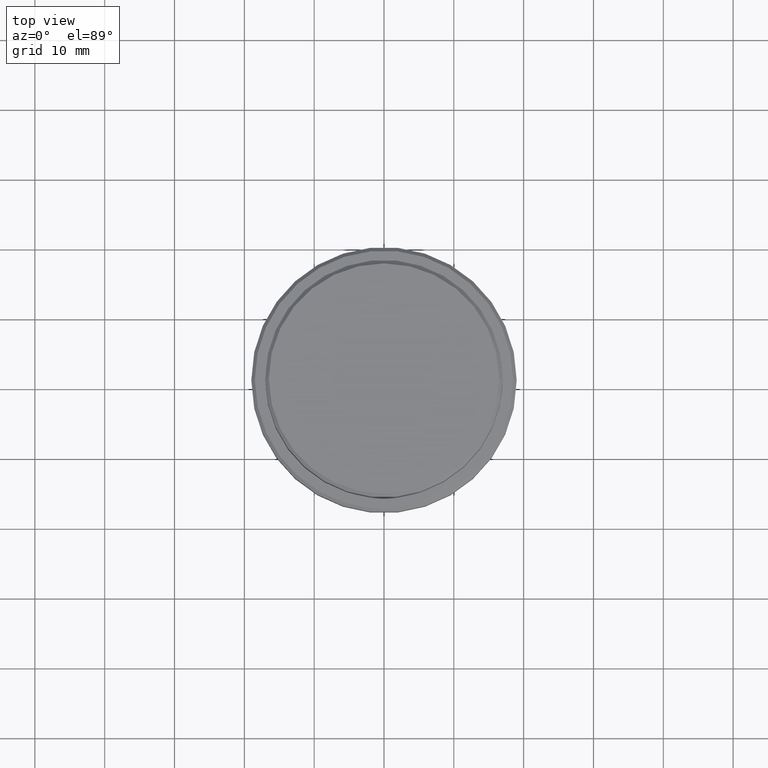
[diagram: clean part render]
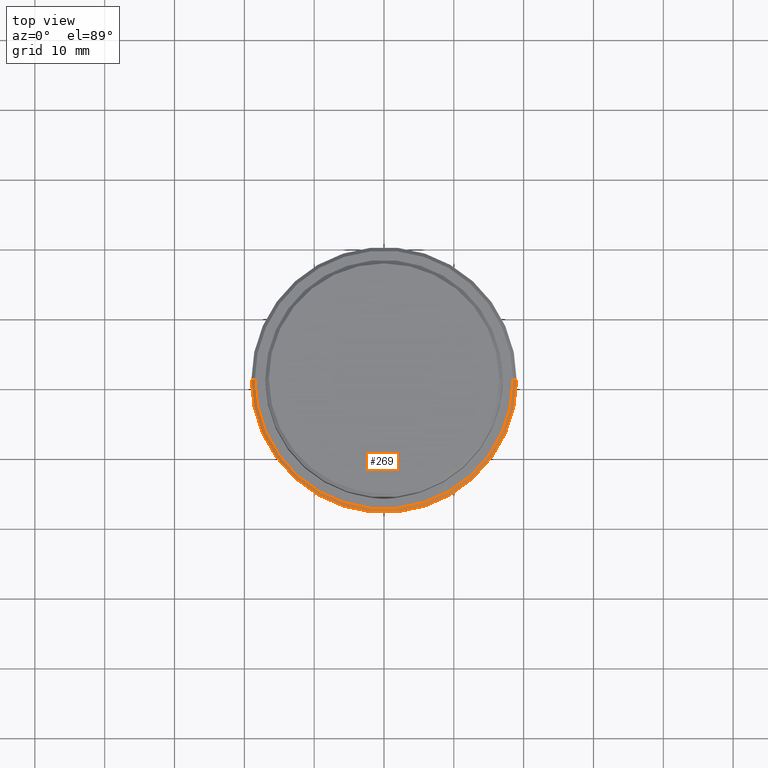
[diagram: same view with one face highlighted and labeled with its STEP entity id]
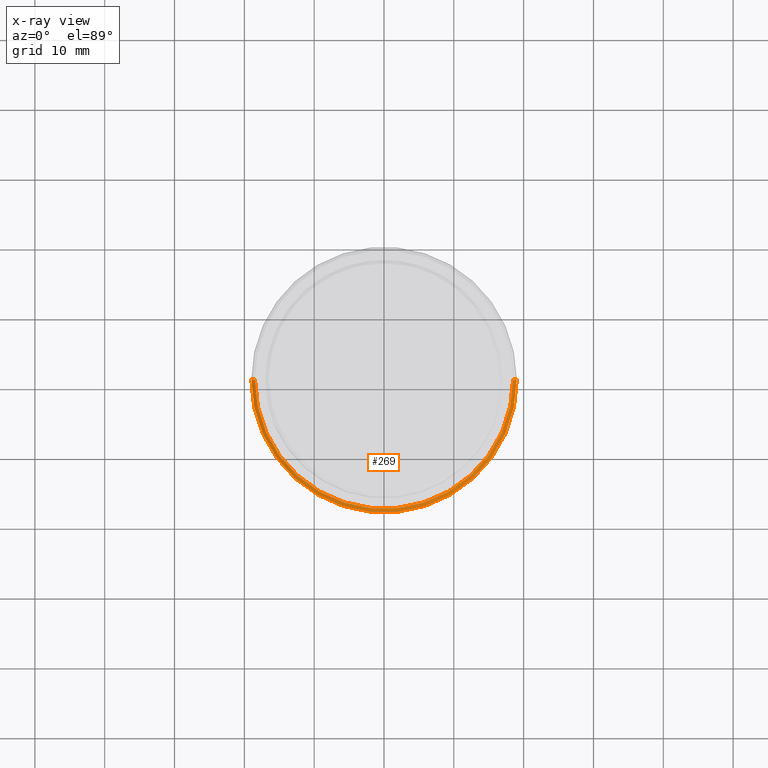
[diagram: x-ray of the same camera — body ghosted, the highlighted face saturated]
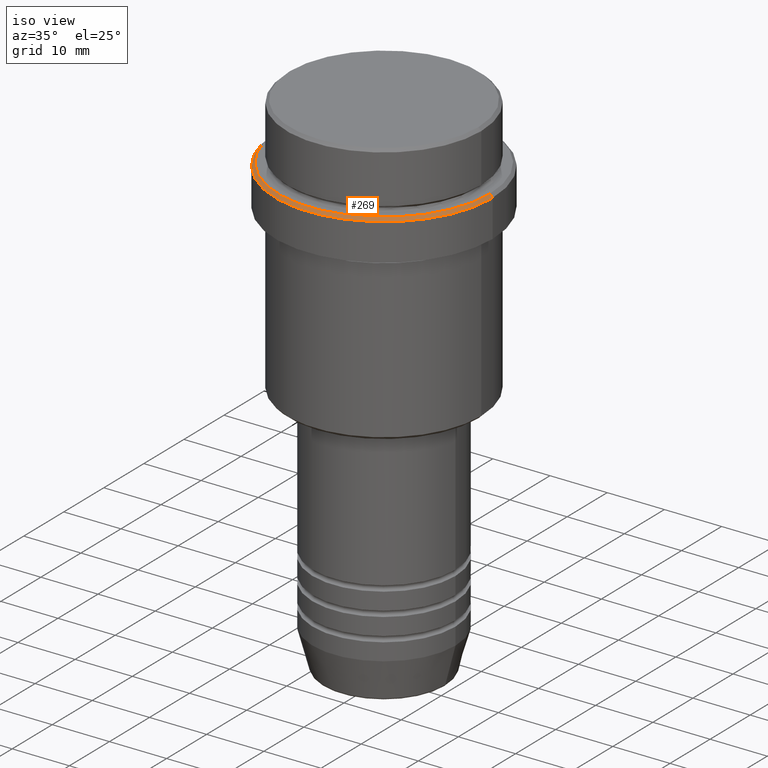
[diagram: same view with one face highlighted and labeled with its STEP entity id]
A machine part, top view. The second image highlights one B-rep face of the part: STEP entity #269.
The next image is the same camera in x-ray: the body ghosted, the highlighted face saturated — about 0% of this face is hidden behind the body in this view.
A second angle (iso view) of the same face is appended — the face is thin or edge-on in the first view.
In plain terms, the highlighted conical surface has half-angle 45 deg.
Its self-contained STEP definition (entity closure, byte-faithful):
#26 = FACE_OUTER_BOUND ( 'NONE', #887, .T. ) ;
#41 = VERTEX_POINT ( 'NONE', #625 ) ;
#107 = VERTEX_POINT ( 'NONE', #636 ) ;
#130 = LINE ( 'NONE', #1016, #204 ) ;
#147 = DIRECTION ( 'NONE',  ( -0.7071067811865352493, 0.000000000000000000, -0.7071067811865597852 ) ) ;
#181 = CARTESIAN_POINT ( 'NONE',  ( 18.50000000000000355, 2.265596578422603791E-15, -10.00000000000000178 ) ) ;
#202 = VERTEX_POINT ( 'NONE', #537 ) ;
#204 = VECTOR ( 'NONE', #147, 1000.000000000000000 ) ;
#263 = CARTESIAN_POINT ( 'NONE',  ( 0.000000000000000000, 0.000000000000000000, -10.50000000000001599 ) ) ;
#269 = ADVANCED_FACE ( 'NONE', ( #26 ), #706, .T. ) ;
#273 = AXIS2_PLACEMENT_3D ( 'NONE', #1325, #996, #1217 ) ;
#323 = EDGE_CURVE ( 'NONE', #107, #928, #964, .T. ) ;
#406 = EDGE_CURVE ( 'NONE', #107, #41, #130, .T. ) ;
#444 = EDGE_CURVE ( 'NONE', #202, #41, #1118, .T. ) ;
#497 = DIRECTION ( 'NONE',  ( 1.000000000000000000, 0.000000000000000000, 0.000000000000000000 ) ) ;
#537 = CARTESIAN_POINT ( 'NONE',  ( 19.00000000000000000, 0.000000000000000000, -10.50000000000001599 ) ) ;
#591 = DIRECTION ( 'NONE',  ( 0.000000000000000000, 0.000000000000000000, -1.000000000000000000 ) ) ;
#625 = CARTESIAN_POINT ( 'NONE',  ( -19.00000000000000000, 2.326828918379970970E-15, -10.50000000000001599 ) ) ;
#633 = DIRECTION ( 'NONE',  ( 0.7071067811865352493, 8.659560562354782482E-17, -0.7071067811865597852 ) ) ;
#636 = CARTESIAN_POINT ( 'NONE',  ( -18.50000000000000355, 0.000000000000000000, -10.00000000000000178 ) ) ;
#640 = ORIENTED_EDGE ( 'NONE', *, *, #444, .F. ) ;
#661 = AXIS2_PLACEMENT_3D ( 'NONE', #263, #591, #497 ) ;
#706 = CONICAL_SURFACE ( 'NONE', #1051, 18.50000000000000355, 0.7853981633974309595 ) ;
#796 = DIRECTION ( 'NONE',  ( 0.000000000000000000, 0.000000000000000000, -1.000000000000000000 ) ) ;
#887 = EDGE_LOOP ( 'NONE', ( #1356, #1233, #1335, #640 ) ) ;
#896 = DIRECTION ( 'NONE',  ( -1.000000000000000000, 0.000000000000000000, 0.000000000000000000 ) ) ;
#908 = EDGE_CURVE ( 'NONE', #928, #202, #1382, .T. ) ;
#928 = VERTEX_POINT ( 'NONE', #1293 ) ;
#964 = CIRCLE ( 'NONE', #273, 18.50000000000000355 ) ;
#996 = DIRECTION ( 'NONE',  ( -0.000000000000000000, -0.000000000000000000, 1.000000000000000000 ) ) ;
#1016 = CARTESIAN_POINT ( 'NONE',  ( -18.50000000000000355, 0.000000000000000000, -10.00000000000000178 ) ) ;
#1031 = VECTOR ( 'NONE', #633, 1000.000000000000000 ) ;
#1051 = AXIS2_PLACEMENT_3D ( 'NONE', #1333, #796, #896 ) ;
#1118 = CIRCLE ( 'NONE', #661, 19.00000000000000000 ) ;
#1217 = DIRECTION ( 'NONE',  ( 1.000000000000000000, 0.000000000000000000, 0.000000000000000000 ) ) ;
#1233 = ORIENTED_EDGE ( 'NONE', *, *, #323, .F. ) ;
#1293 = CARTESIAN_POINT ( 'NONE',  ( 18.50000000000000355, 2.296212748401287578E-15, -10.00000000000000178 ) ) ;
#1325 = CARTESIAN_POINT ( 'NONE',  ( 0.000000000000000000, 0.000000000000000000, -10.00000000000000178 ) ) ;
#1333 = CARTESIAN_POINT ( 'NONE',  ( 0.000000000000000000, 0.000000000000000000, -10.00000000000000178 ) ) ;
#1335 = ORIENTED_EDGE ( 'NONE', *, *, #406, .T. ) ;
#1356 = ORIENTED_EDGE ( 'NONE', *, *, #908, .F. ) ;
#1382 = LINE ( 'NONE', #181, #1031 ) ;